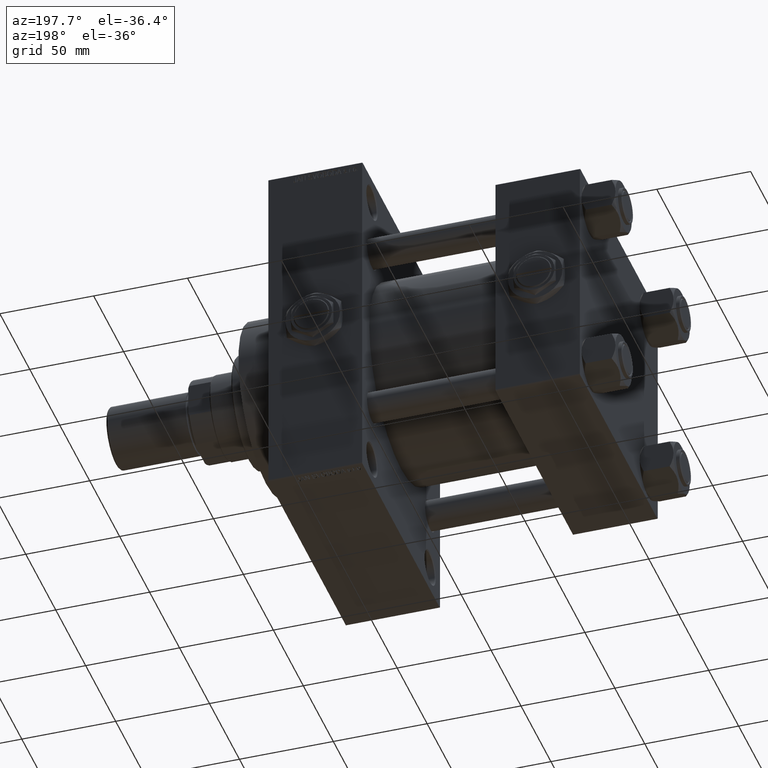
[diagram: clean part render]
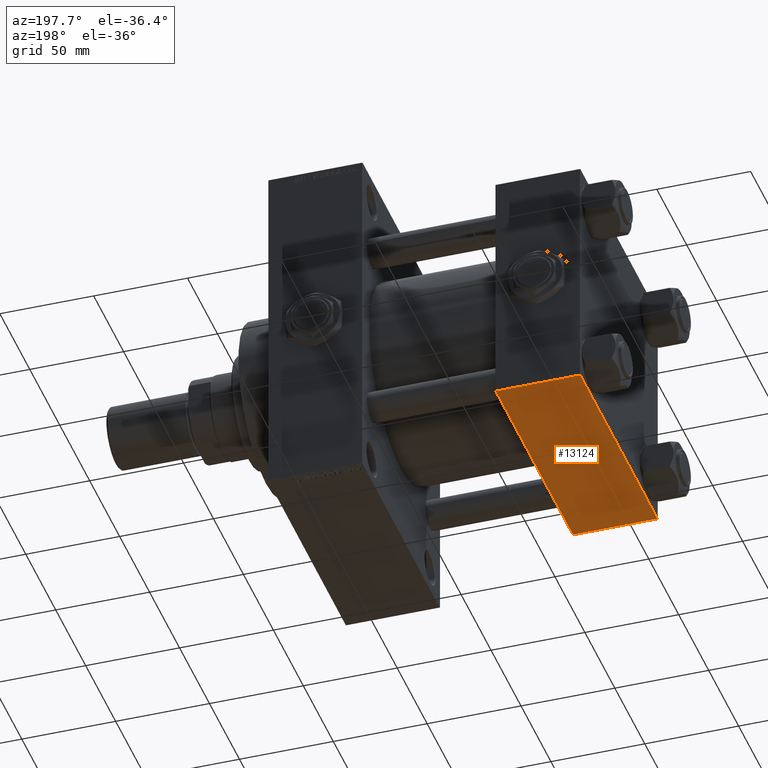
[diagram: same view with one face highlighted and labeled with its STEP entity id]
A machine part, auxiliary view. The second image highlights one B-rep face of the part: STEP entity #13124.
In plain terms, the highlighted planar face has unit normal (0, 0, -1).
Its self-contained STEP definition (entity closure, byte-faithful):
#1527 = VERTEX_POINT ( 'NONE', #3610 ) ;
#2762 = EDGE_CURVE ( 'NONE', #1527, #49928, #11737, .T. ) ;
#2790 = EDGE_LOOP ( 'NONE', ( #20474, #4147, #44324, #6885 ) ) ;
#3610 = CARTESIAN_POINT ( 'NONE',  ( 0.000000000000000000, 64.49999999999997158, -64.99999999999998579 ) ) ;
#4147 = ORIENTED_EDGE ( 'NONE', *, *, #2762, .T. ) ;
#5744 = CARTESIAN_POINT ( 'NONE',  ( 0.000000000000000000, -64.49999999999994316, -65.00000000000001421 ) ) ;
#6885 = ORIENTED_EDGE ( 'NONE', *, *, #36170, .T. ) ;
#7271 = CARTESIAN_POINT ( 'NONE',  ( 0.000000000000000000, -64.49999999999994316, -65.00000000000001421 ) ) ;
#8002 = VECTOR ( 'NONE', #47415, 1000.000000000000000 ) ;
#8760 = FACE_OUTER_BOUND ( 'NONE', #2790, .T. ) ;
#8884 = VECTOR ( 'NONE', #12496, 1000.000000000000000 ) ;
#10512 = LINE ( 'NONE', #11519, #15051 ) ;
#11322 = CARTESIAN_POINT ( 'NONE',  ( 45.00000000000000000, 65.00000000000000000, -64.99999999999998579 ) ) ;
#11519 = CARTESIAN_POINT ( 'NONE',  ( 0.000000000000000000, 65.00000000000000000, -64.99999999999998579 ) ) ;
#11737 = LINE ( 'NONE', #23681, #8884 ) ;
#12496 = DIRECTION ( 'NONE',  ( 1.000000000000000000, 0.000000000000000000, 0.000000000000000000 ) ) ;
#13070 = CARTESIAN_POINT ( 'NONE',  ( 45.00000000000000000, 65.00000000000000000, -64.99999999999998579 ) ) ;
#13124 = ADVANCED_FACE ( 'NONE', ( #8760 ), #24265, .T. ) ;
#15051 = VECTOR ( 'NONE', #22463, 1000.000000000000000 ) ;
#16416 = VECTOR ( 'NONE', #43529, 1000.000000000000000 ) ;
#20432 = EDGE_CURVE ( 'NONE', #49928, #25360, #42078, .T. ) ;
#20474 = ORIENTED_EDGE ( 'NONE', *, *, #43414, .F. ) ;
#22463 = DIRECTION ( 'NONE',  ( 0.000000000000000000, -1.000000000000000000, -2.135044278125300850E-16 ) ) ;
#23681 = CARTESIAN_POINT ( 'NONE',  ( 45.00000000000000000, 64.49999999999997158, -64.99999999999998579 ) ) ;
#23899 = CARTESIAN_POINT ( 'NONE',  ( 45.00000000000000000, -64.49999999999994316, -65.00000000000001421 ) ) ;
#24265 = PLANE ( 'NONE',  #47083 ) ;
#25360 = VERTEX_POINT ( 'NONE', #23899 ) ;
#28575 = CARTESIAN_POINT ( 'NONE',  ( 45.00000000000000000, 64.49999999999997158, -64.99999999999998579 ) ) ;
#36170 = EDGE_CURVE ( 'NONE', #25360, #46204, #49702, .T. ) ;
#39782 = DIRECTION ( 'NONE',  ( 0.000000000000000000, 1.000000000000000000, 2.135044278125301096E-16 ) ) ;
#42078 = LINE ( 'NONE', #11322, #16416 ) ;
#43414 = EDGE_CURVE ( 'NONE', #1527, #46204, #10512, .T. ) ;
#43529 = DIRECTION ( 'NONE',  ( 0.000000000000000000, -1.000000000000000000, -2.135044278125300850E-16 ) ) ;
#44324 = ORIENTED_EDGE ( 'NONE', *, *, #20432, .T. ) ;
#46204 = VERTEX_POINT ( 'NONE', #5744 ) ;
#47083 = AXIS2_PLACEMENT_3D ( 'NONE', #13070, #49072, #39782 ) ;
#47415 = DIRECTION ( 'NONE',  ( -1.000000000000000000, 0.000000000000000000, 0.000000000000000000 ) ) ;
#49072 = DIRECTION ( 'NONE',  ( 0.000000000000000000, 2.135044278125301096E-16, -1.000000000000000000 ) ) ;
#49702 = LINE ( 'NONE', #7271, #8002 ) ;
#49928 = VERTEX_POINT ( 'NONE', #28575 ) ;